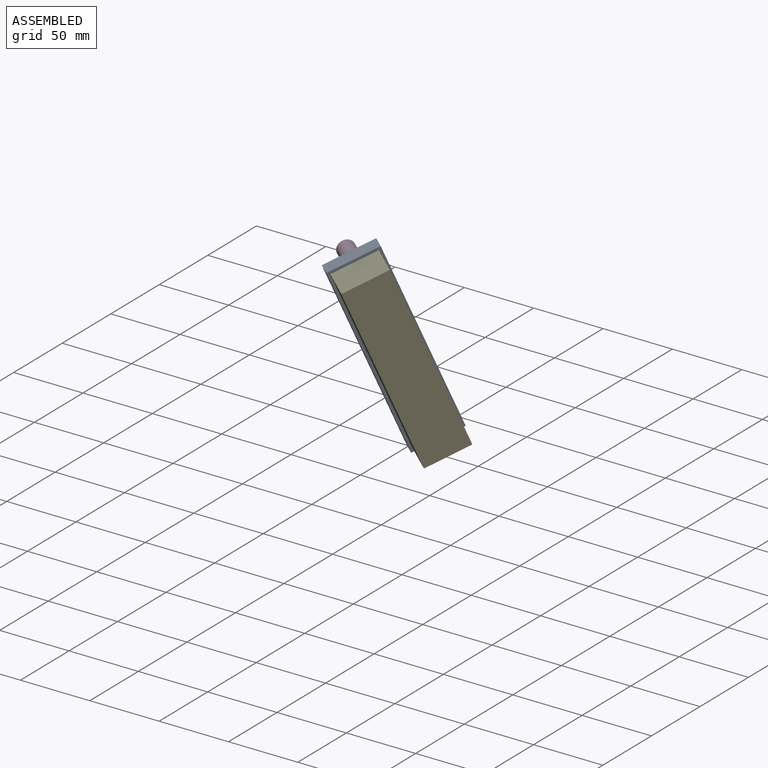
[diagram: assembled view]
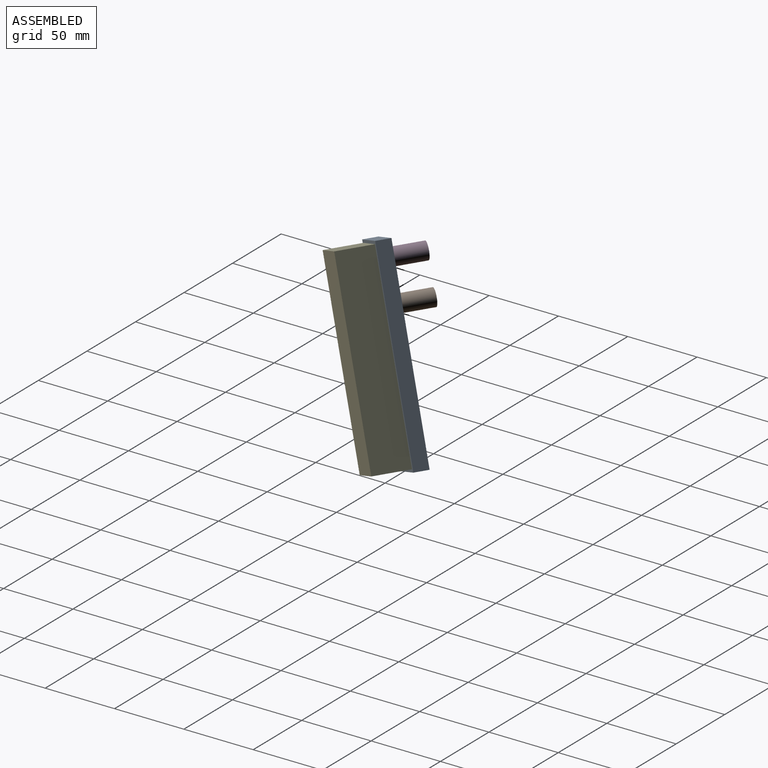
[diagram: assembled view, second angle]
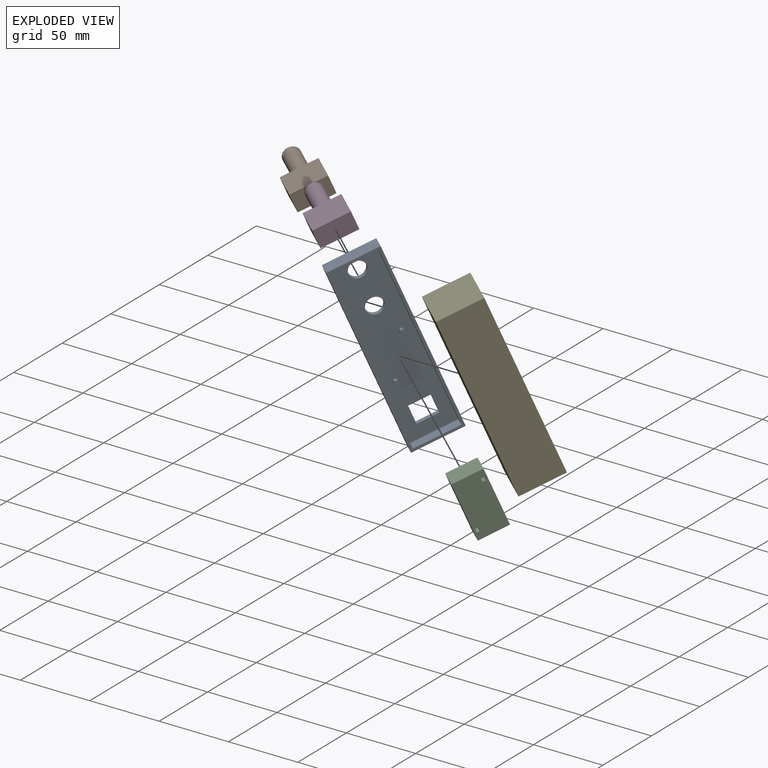
[diagram: exploded view]
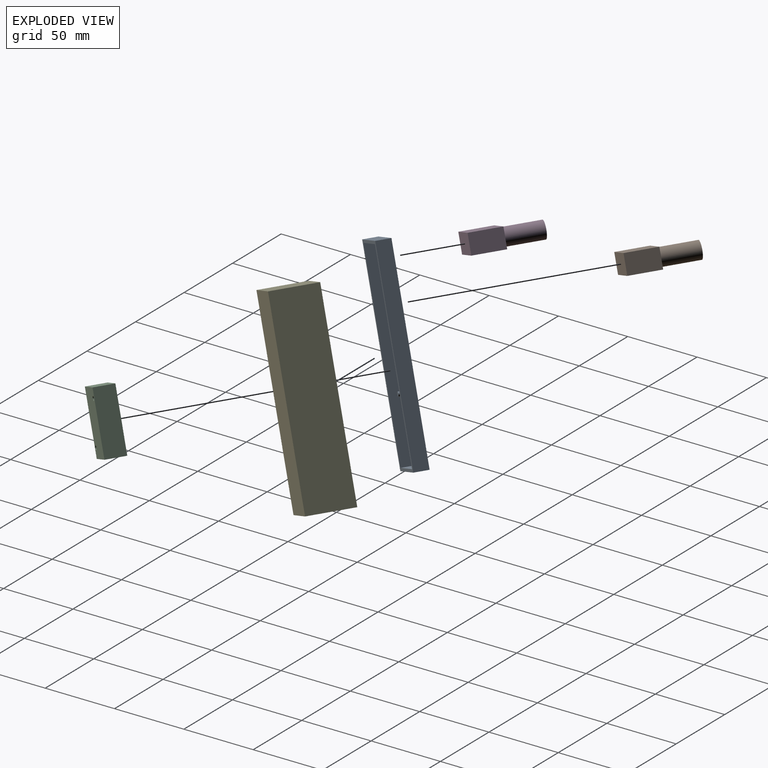
[diagram: exploded view, second angle]
ASSEMBLY  parts=5 mates=9
PART A: 21 faces, bbox 139x36x10 mm
  f0: plane 15x3mm, normal (1,0,0), area 45mm2, adj f1,f5,f6,f7
  f1: plane 14x3mm, normal (0,-1,0), area 42mm2, adj f0,f2,f6,f7
  f2: plane 15x3mm, normal (-1,0,0), area 45mm2, adj f1,f5,f6,f7
  f3: cylinder r=6mm len=12mm, axis (0,0,-1), area 113.1mm2, adj f6,f7
  f4: cylinder r=6mm len=12mm, axis (0,0,-1), area 113.1mm2, adj f6,f7
  f5: plane 14x3mm, normal (0,1,0), area 42mm2, adj f0,f2,f6,f7
  f6: plane 135x32mm, normal (0,0,1), area 3869.7mm2, adj f0,f1,f2,f3,f4,f5,f8,f10
  f7: plane 139x36mm, normal (0,0,-1), area 4567.8mm2, adj f0,f1,f2,f3,f4,f5,f16,f17
  f8: cylinder r=1.5mm len=3mm, axis (0,0,-1), area 28.3mm2, adj f6,f9
  f9: plane 3x3mm, normal (0,0,1), area 7.1mm2, adj f8
  f10: cylinder r=1.5mm len=3mm, axis (0,0,-1), area 28.3mm2, adj f6,f11
  f11: plane 3x3mm, normal (0,0,1), area 7.1mm2, adj f10
  f12: plane 32x7mm, normal (1,0,0), area 224mm2, adj f6,f13,f15,f20
  f13: plane 135x7mm, normal (0,1,0), area 945mm2, adj f6,f12,f14,f20
  f14: plane 32x7mm, normal (-1,0,0), area 224mm2, adj f6,f13,f15,f20
  f15: plane 135x7mm, normal (0,-1,0), area 945mm2, adj f6,f12,f14,f20
  f16: plane 139x10mm, normal (0,-1,0), area 1390mm2, adj f7,f17,f19,f20
  f17: plane 36x10mm, normal (1,0,0), area 360mm2, adj f7,f16,f18,f20
  f18: plane 139x10mm, normal (0,1,0), area 1390mm2, adj f7,f17,f19,f20
  f19: plane 36x10mm, normal (-1,0,0), area 360mm2, adj f7,f16,f18,f20
  f20: plane 139x36mm, normal (0,0,1), area 684mm2, adj f12,f13,f14,f15,f16,f17,f18,f19
PART B: 8 faces, bbox 13.7x25.6x48.7 mm
  f0: plane 25.6x22mm, normal (-1,0,0), area 563.2mm2, adj f1,f3,f4,f5
  f1: plane 22x13.7mm, normal (0,-1,0), area 301.4mm2, adj f0,f2,f4,f5
  f2: plane 25.6x22mm, normal (1,0,0), area 563.2mm2, adj f1,f3,f4,f5
  f3: plane 22x13.7mm, normal (0,1,0), area 301.4mm2, adj f0,f2,f4,f5
  f4: plane 25.6x13.7mm, normal (0,0,1), area 237.6mm2, adj f0,f1,f2,f3,f6
  f5: plane 25.6x13.7mm, normal (0,0,-1), area 350.7mm2, adj f0,f1,f2,f3
  f6: cylinder r=6mm len=26.7mm, axis (0,0,-1), area 1006.6mm2, adj f4,f7
  f7: plane 12x12mm, normal (0,0,1), area 113.1mm2, adj f6
PART C: 8 faces, bbox 43.4x21.3x14 mm
  f0: plane 21.3x14mm, normal (-1,0,0), area 298.2mm2, adj f1,f4,f6,f7
  f1: plane 43.4x14mm, normal (0,-1,0), area 607.6mm2, adj f0,f2,f6,f7
  f2: plane 21.3x14mm, normal (1,0,0), area 298.2mm2, adj f1,f4,f6,f7
  f3: cylinder r=1.5mm len=14mm, axis (0,0,-1), area 131.9mm2, adj f6,f7
  f4: plane 43.4x14mm, normal (0,1,0), area 607.6mm2, adj f0,f2,f6,f7
  f5: cylinder r=1.5mm len=14mm, axis (0,0,-1), area 131.9mm2, adj f6,f7
  f6: plane 43.4x21.3mm, normal (0,0,1), area 910.3mm2, adj f0,f1,f2,f3,f4,f5
  f7: plane 43.4x21.3mm, normal (0,0,-1), area 910.3mm2, adj f0,f1,f2,f3,f4,f5
PART D: same geometry as B
PART E: 11 faces, bbox 135x32x32 mm
  f0: plane 32x32mm, normal (-1,0,0), area 1024mm2, adj f1,f3,f4,f9
  f1: plane 135x32mm, normal (0,-1,0), area 4320mm2, adj f0,f2,f4,f9
  f2: plane 32x32mm, normal (1,0,0), area 1024mm2, adj f1,f3,f4,f9
  f3: plane 135x32mm, normal (0,1,0), area 4320mm2, adj f0,f2,f4,f9
  f4: plane 135x32mm, normal (0,0,-1), area 4320mm2, adj f0,f1,f2,f3
  f5: plane 29x28mm, normal (-1,0,0), area 812mm2, adj f6,f8,f9,f10
  f6: plane 131x29mm, normal (0,1,0), area 3799mm2, adj f5,f7,f9,f10
  f7: plane 29x28mm, normal (1,0,0), area 812mm2, adj f6,f8,f9,f10
  f8: plane 131x29mm, normal (0,-1,0), area 3799mm2, adj f5,f7,f9,f10
  f9: plane 135x32mm, normal (0,0,1), area 652mm2, adj f0,f1,f2,f3,f5,f6,f7,f8
  f10: plane 131x28mm, normal (0,0,1), area 3668mm2, adj f5,f6,f7,f8
PLACE A rot(axis=(0.52,0.84,-0.14),95.1deg) t=(132.17,18.73,143.34)mm
PLACE B rot(axis=(-0.73,0.11,0.67),135.1deg) t=(175.22,33.15,124.27)mm
PLACE C rot(axis=(0.52,0.84,-0.14),95.1deg) t=(148.8,39.05,95.14)mm
PLACE D rot(axis=(-0.73,0.11,0.67),135.1deg) t=(169.53,23.62,149.98)mm
PLACE E rot(axis=(-0.73,0.11,0.67),135.1deg) t=(178.5,18.35,153.44)mm
MATE planar D.f6 <-> A.f6  axis (-0.76,0.64,0.07) through (146.27,31.23,140.19)mm
MATE planar E.f1 <-> A.f15  axis (0.61,0.69,0.39) through (179.96,51.56,92.55)mm
MATE planar B.f6 <-> A.f6  axis (-0.76,0.64,0.07) through (151.95,40.75,114.48)mm
MATE planar E.f9 <-> A.f6  axis (-0.76,0.64,0.07) through (157.94,50.79,87.4)mm
MATE slider D.f6 <-> A.f3  axis (0.76,-0.64,-0.07) through (125.85,48.33,142.01)mm
MATE slider B.f6 <-> A.f4  axis (0.76,-0.64,-0.07) through (131.53,57.85,116.3)mm
MATE planar A.f6 <-> C.f7  axis (0.76,-0.64,-0.07) through (157.89,50.71,87.61)mm
MATE slider A.f10 <-> C.f5  axis (0.76,-0.64,-0.07) through (157.84,53.32,62.46)mm
MATE planar E.f2 <-> A.f14  axis (0.2,0.34,-0.92) through (183.88,63.5,24.33)mm
